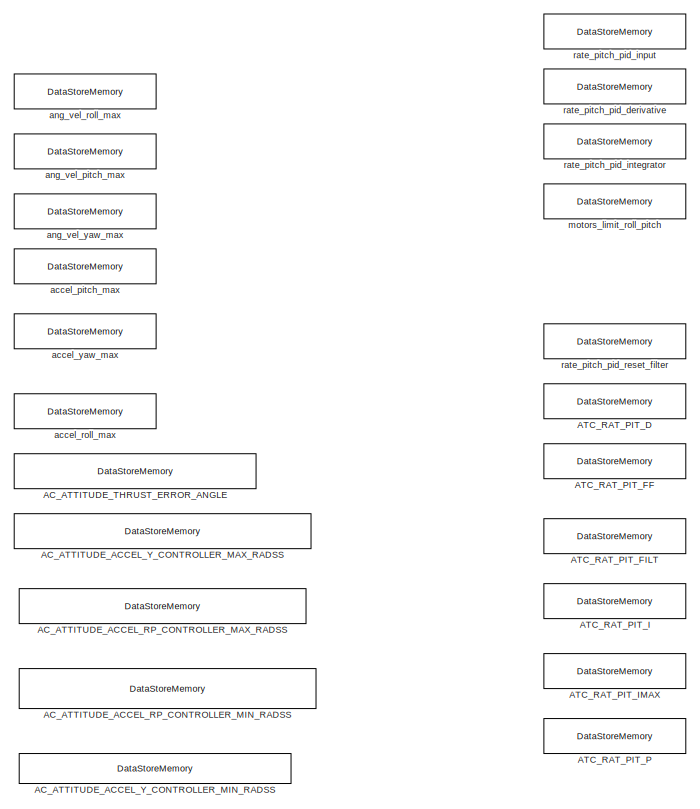
[diagram: root canvas - part 1/3, central region]
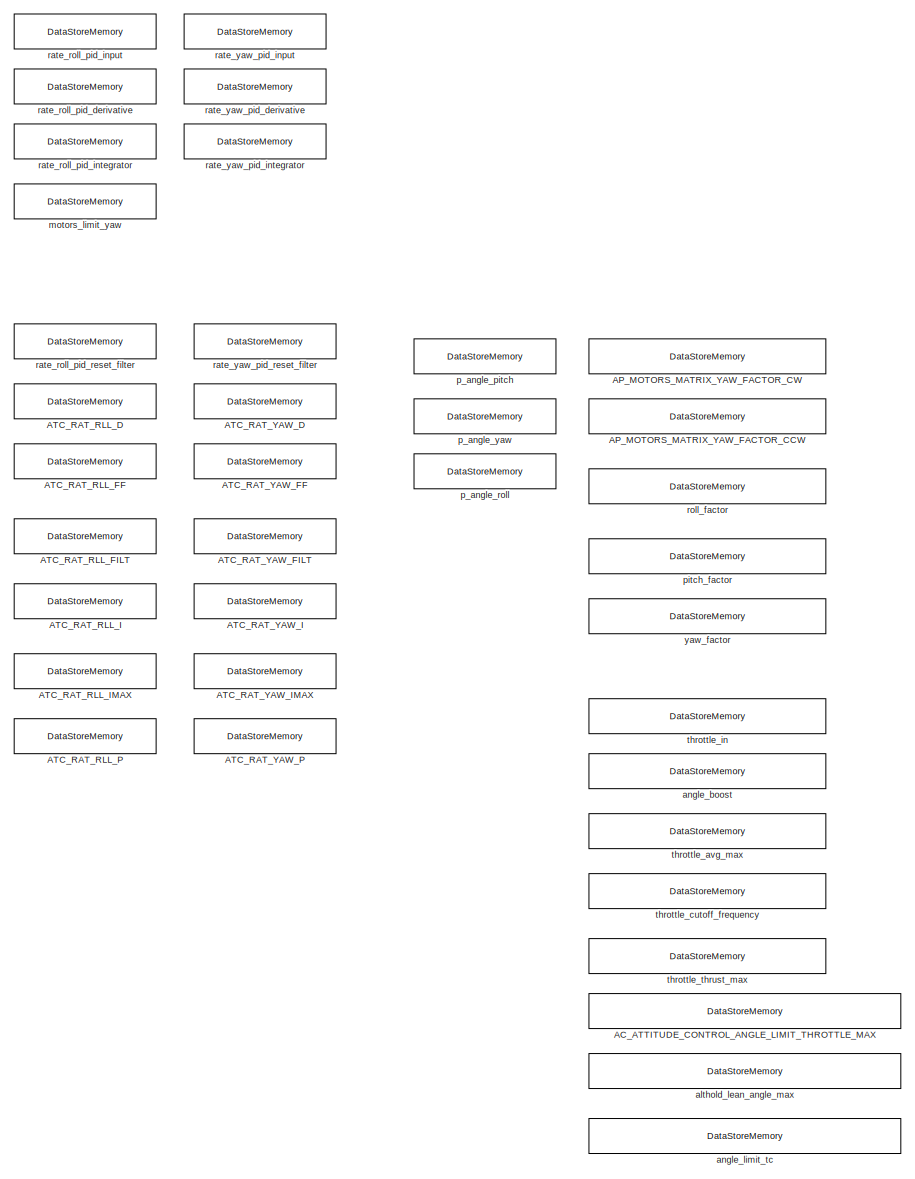
[diagram: root canvas - part 2/3, right side, full height]
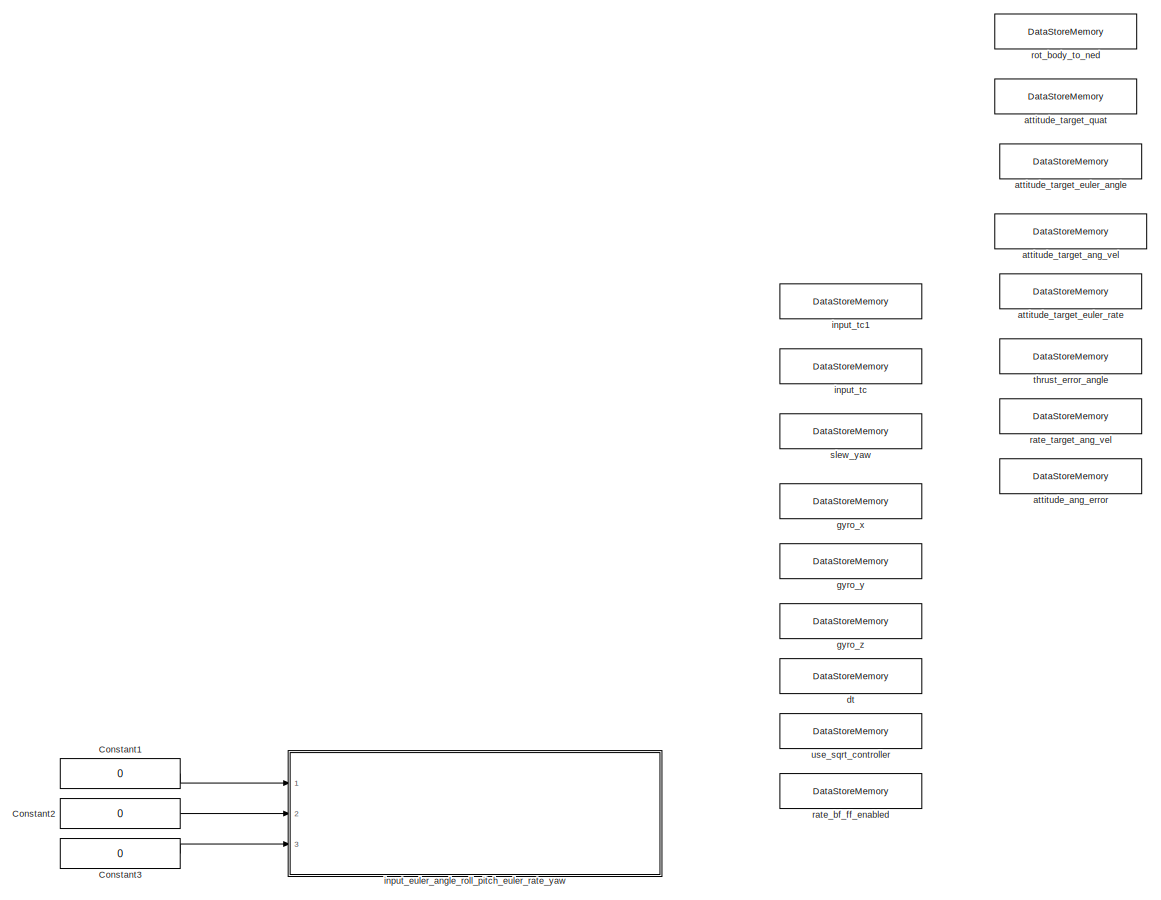
[diagram: root canvas - part 3/3, left side, full height]
MODEL slx_bdc938cd009f
KIND model
CONFIG AbsTol = auto
CONFIG EnableMultiTasking = off
CONFIG FixedStep = 0.01
CONFIG MaxStep = auto
CONFIG MinStep = auto
CONFIG RelTol = 1e-3
CONFIG SampleTimeConstraint = Unconstrained
CONFIG Solver = FixedStepAuto
CONFIG SolverName = FixedStepAuto
CONFIG StartTime = 0.0
CONFIG StopTime = 10.0
BLOCK [DataStoreMemory] AC_ATTITUDE_ACCEL_RP_CONTROLLER_MAX_RADSS
  DataStoreName = AC_ATTITUDE_ACCEL_RP_CONTROLLER_MAX_RADSS
  InitialValue = AC_ATTITUDE_ACCEL_RP_CONTROLLER_MAX_RADSS
  OutDataTypeStr = double
  ReadBeforeWriteMsg = warning
  ShowAdditionalParam = off
  SignalType = real
  VectorParams1D = off
  WriteAfterReadMsg = warning
  WriteAfterWriteMsg = warning
BLOCK [DataStoreMemory] AC_ATTITUDE_ACCEL_RP_CONTROLLER_MIN_RADSS
  DataStoreName = AC_ATTITUDE_ACCEL_RP_CONTROLLER_MIN_RADSS
  InitialValue = AC_ATTITUDE_ACCEL_RP_CONTROLLER_MIN_RADSS
  OutDataTypeStr = double
  ReadBeforeWriteMsg = warning
  ShowAdditionalParam = off
  SignalType = real
  VectorParams1D = off
  WriteAfterReadMsg = warning
  WriteAfterWriteMsg = warning
BLOCK [DataStoreMemory] AC_ATTITUDE_ACCEL_Y_CONTROLLER_MAX_RADSS
  DataStoreName = AC_ATTITUDE_ACCEL_Y_CONTROLLER_MAX_RADSS
  InitialValue = AC_ATTITUDE_ACCEL_Y_CONTROLLER_MAX_RADSS
  OutDataTypeStr = double
  ReadBeforeWriteMsg = warning
  ShowAdditionalParam = off
  SignalType = real
  WriteAfterReadMsg = warning
  WriteAfterWriteMsg = warning
BLOCK [DataStoreMemory] AC_ATTITUDE_ACCEL_Y_CONTROLLER_MIN_RADSS
  DataStoreName = AC_ATTITUDE_ACCEL_Y_CONTROLLER_MIN_RADSS
  InitialValue = AC_ATTITUDE_ACCEL_Y_CONTROLLER_MIN_RADSS
  OutDataTypeStr = double
  ReadBeforeWriteMsg = warning
  ShowAdditionalParam = off
  SignalType = real
  VectorParams1D = off
  WriteAfterReadMsg = warning
  WriteAfterWriteMsg = warning
BLOCK [DataStoreMemory] AC_ATTITUDE_CONTROL_ANGLE_LIMIT_THROTTLE_MAX
  DataStoreName = AC_ATTITUDE_CONTROL_ANGLE_LIMIT_THROTTLE_MAX
  InitialValue = AC_ATTITUDE_CONTROL_ANGLE_LIMIT_THROTTLE_MAX
  OutDataTypeStr = double
  ReadBeforeWriteMsg = warning
  ShowAdditionalParam = off
  SignalType = real
  VectorParams1D = off
  WriteAfterReadMsg = warning
  WriteAfterWriteMsg = warning
BLOCK [DataStoreMemory] AC_ATTITUDE_THRUST_ERROR_ANGLE
  DataStoreName = AC_ATTITUDE_THRUST_ERROR_ANGLE
  InitialValue = AC_ATTITUDE_THRUST_ERROR_ANGLE
  OutDataTypeStr = double
  ReadBeforeWriteMsg = warning
  ShowAdditionalParam = off
  SignalType = real
  WriteAfterReadMsg = warning
  WriteAfterWriteMsg = warning
BLOCK [DataStoreMemory] AP_MOTORS_MATRIX_YAW_FACTOR_CCW
  DataStoreName = AP_MOTORS_MATRIX_YAW_FACTOR_CCW
  InitialValue = AP_MOTORS_MATRIX_YAW_FACTOR_CCW
  OutDataTypeStr = double
  ReadBeforeWriteMsg = warning
  ShowAdditionalParam = off
  SignalType = real
  VectorParams1D = off
  WriteAfterReadMsg = warning
  WriteAfterWriteMsg = warning
BLOCK [DataStoreMemory] AP_MOTORS_MATRIX_YAW_FACTOR_CW
  DataStoreName = AP_MOTORS_MATRIX_YAW_FACTOR_CW
  InitialValue = AP_MOTORS_MATRIX_YAW_FACTOR_CW
  OutDataTypeStr = double
  ReadBeforeWriteMsg = warning
  ShowAdditionalParam = off
  SignalType = real
  VectorParams1D = off
  WriteAfterReadMsg = warning
  WriteAfterWriteMsg = warning
BLOCK [DataStoreMemory] ATC_RAT_PIT_D
  DataStoreName = ATC_RAT_PIT_D
  InitialValue = ATC_RAT_PIT_D
  OutDataTypeStr = double
  ReadBeforeWriteMsg = warning
  ShowAdditionalParam = off
  SignalType = real
  VectorParams1D = off
  WriteAfterReadMsg = warning
  WriteAfterWriteMsg = warning
BLOCK [DataStoreMemory] ATC_RAT_PIT_FF
  DataStoreName = ATC_RAT_PIT_FF
  InitialValue = ATC_RAT_PIT_FF
  OutDataTypeStr = double
  ReadBeforeWriteMsg = warning
  ShowAdditionalParam = off
  SignalType = real
  VectorParams1D = off
  WriteAfterReadMsg = warning
  WriteAfterWriteMsg = warning
BLOCK [DataStoreMemory] ATC_RAT_PIT_FILT
  DataStoreName = ATC_RAT_PIT_FILT
  InitialValue = ATC_RAT_PIT_FILT
  OutDataTypeStr = double
  ReadBeforeWriteMsg = warning
  ShowAdditionalParam = off
  SignalType = real
  VectorParams1D = off
  WriteAfterReadMsg = warning
  WriteAfterWriteMsg = warning
BLOCK [DataStoreMemory] ATC_RAT_PIT_I
  DataStoreName = ATC_RAT_PIT_I
  InitialValue = ATC_RAT_PIT_I
  OutDataTypeStr = double
  ReadBeforeWriteMsg = warning
  ShowAdditionalParam = off
  SignalType = real
  VectorParams1D = off
  WriteAfterReadMsg = warning
  WriteAfterWriteMsg = warning
BLOCK [DataStoreMemory] ATC_RAT_PIT_IMAX
  DataStoreName = ATC_RAT_PIT_IMAX
  InitialValue = ATC_RAT_PIT_IMAX
  OutDataTypeStr = double
  ReadBeforeWriteMsg = warning
  ShowAdditionalParam = off
  SignalType = real
  VectorParams1D = off
  WriteAfterReadMsg = warning
  WriteAfterWriteMsg = warning
BLOCK [DataStoreMemory] ATC_RAT_PIT_P
  DataStoreName = ATC_RAT_PIT_P
  InitialValue = ATC_RAT_PIT_P
  OutDataTypeStr = double
  ReadBeforeWriteMsg = warning
  ShowAdditionalParam = off
  SignalType = real
  VectorParams1D = off
  WriteAfterReadMsg = warning
  WriteAfterWriteMsg = warning
BLOCK [DataStoreMemory] ATC_RAT_RLL_D
  DataStoreName = ATC_RAT_RLL_D
  InitialValue = ATC_RAT_RLL_D
  OutDataTypeStr = double
  ReadBeforeWriteMsg = warning
  ShowAdditionalParam = off
  SignalType = real
  VectorParams1D = off
  WriteAfterReadMsg = warning
  WriteAfterWriteMsg = warning
BLOCK [DataStoreMemory] ATC_RAT_RLL_FF
  DataStoreName = ATC_RAT_RLL_FF
  InitialValue = ATC_RAT_RLL_FF
  OutDataTypeStr = double
  ReadBeforeWriteMsg = warning
  ShowAdditionalParam = off
  SignalType = real
  VectorParams1D = off
  WriteAfterReadMsg = warning
  WriteAfterWriteMsg = warning
BLOCK [DataStoreMemory] ATC_RAT_RLL_FILT
  DataStoreName = ATC_RAT_RLL_FILT
  InitialValue = ATC_RAT_RLL_FILT
  OutDataTypeStr = double
  ReadBeforeWriteMsg = warning
  ShowAdditionalParam = off
  SignalType = real
  VectorParams1D = off
  WriteAfterReadMsg = warning
  WriteAfterWriteMsg = warning
BLOCK [DataStoreMemory] ATC_RAT_RLL_I
  DataStoreName = ATC_RAT_RLL_I
  InitialValue = ATC_RAT_RLL_I
  OutDataTypeStr = double
  ReadBeforeWriteMsg = warning
  ShowAdditionalParam = off
  SignalType = real
  VectorParams1D = off
  WriteAfterReadMsg = warning
  WriteAfterWriteMsg = warning
BLOCK [DataStoreMemory] ATC_RAT_RLL_IMAX
  DataStoreName = ATC_RAT_RLL_IMAX
  InitialValue = ATC_RAT_RLL_IMAX
  OutDataTypeStr = double
  ReadBeforeWriteMsg = warning
  ShowAdditionalParam = off
  SignalType = real
  VectorParams1D = off
  WriteAfterReadMsg = warning
  WriteAfterWriteMsg = warning
BLOCK [DataStoreMemory] ATC_RAT_RLL_P
  DataStoreName = ATC_RAT_RLL_P
  InitialValue = ATC_RAT_RLL_P
  OutDataTypeStr = double
  ReadBeforeWriteMsg = warning
  ShowAdditionalParam = off
  SignalType = real
  VectorParams1D = off
  WriteAfterReadMsg = warning
  WriteAfterWriteMsg = warning
BLOCK [DataStoreMemory] ATC_RAT_YAW_D
  DataStoreName = ATC_RAT_YAW_D
  InitialValue = ATC_RAT_YAW_D
  OutDataTypeStr = double
  ReadBeforeWriteMsg = warning
  ShowAdditionalParam = off
  SignalType = real
  VectorParams1D = off
  WriteAfterReadMsg = warning
  WriteAfterWriteMsg = warning
BLOCK [DataStoreMemory] ATC_RAT_YAW_FF
  DataStoreName = ATC_RAT_YAW_FF
  InitialValue = ATC_RAT_YAW_FF
  OutDataTypeStr = double
  ReadBeforeWriteMsg = warning
  ShowAdditionalParam = off
  SignalType = real
  VectorParams1D = off
  WriteAfterReadMsg = warning
  WriteAfterWriteMsg = warning
BLOCK [DataStoreMemory] ATC_RAT_YAW_FILT
  DataStoreName = ATC_RAT_YAW_FILT
  InitialValue = ATC_RAT_YAW_FILT
  OutDataTypeStr = double
  ReadBeforeWriteMsg = warning
  ShowAdditionalParam = off
  SignalType = real
  VectorParams1D = off
  WriteAfterReadMsg = warning
  WriteAfterWriteMsg = warning
BLOCK [DataStoreMemory] ATC_RAT_YAW_I
  DataStoreName = ATC_RAT_YAW_I
  InitialValue = ATC_RAT_YAW_I
  OutDataTypeStr = double
  ReadBeforeWriteMsg = warning
  ShowAdditionalParam = off
  SignalType = real
  VectorParams1D = off
  WriteAfterReadMsg = warning
  WriteAfterWriteMsg = warning
BLOCK [DataStoreMemory] ATC_RAT_YAW_IMAX
  DataStoreName = ATC_RAT_YAW_IMAX
  InitialValue = ATC_RAT_YAW_IMAX
  OutDataTypeStr = double
  ReadBeforeWriteMsg = warning
  ShowAdditionalParam = off
  SignalType = real
  VectorParams1D = off
  WriteAfterReadMsg = warning
  WriteAfterWriteMsg = warning
BLOCK [DataStoreMemory] ATC_RAT_YAW_P
  DataStoreName = ATC_RAT_YAW_P
  InitialValue = ATC_RAT_YAW_P
  OutDataTypeStr = double
  ReadBeforeWriteMsg = warning
  ShowAdditionalParam = off
  SignalType = real
  VectorParams1D = off
  WriteAfterReadMsg = warning
  WriteAfterWriteMsg = warning
BLOCK [Constant] Constant1
  Value = 0
  VectorParams1D = off
BLOCK [Constant] Constant2
  Value = 0
  VectorParams1D = off
BLOCK [Constant] Constant3
  Value = 0
  VectorParams1D = off
BLOCK [DataStoreMemory] accel_pitch_max
  DataStoreName = accel_pitch_max
  InitialValue = accel_pitch_max
  OutDataTypeStr = double
  ReadBeforeWriteMsg = warning
  ShowAdditionalParam = off
  SignalType = real
  VectorParams1D = off
  WriteAfterReadMsg = warning
  WriteAfterWriteMsg = warning
BLOCK [DataStoreMemory] accel_roll_max
  DataStoreName = accel_roll_max
  InitialValue = accel_roll_max
  OutDataTypeStr = double
  ReadBeforeWriteMsg = warning
  ShowAdditionalParam = off
  SignalType = real
  VectorParams1D = off
  WriteAfterReadMsg = warning
  WriteAfterWriteMsg = warning
BLOCK [DataStoreMemory] accel_yaw_max
  DataStoreName = accel_yaw_max
  InitialValue = accel_yaw_max
  OutDataTypeStr = double
  ReadBeforeWriteMsg = warning
  ShowAdditionalParam = off
  SignalType = real
  VectorParams1D = off
  WriteAfterReadMsg = warning
  WriteAfterWriteMsg = warning
BLOCK [DataStoreMemory] althold_lean_angle_max
  DataStoreName = althold_lean_angle_max
  InitialValue = althold_lean_angle_max
  OutDataTypeStr = double
  ReadBeforeWriteMsg = warning
  ShowAdditionalParam = off
  SignalType = real
  VectorParams1D = off
  WriteAfterReadMsg = warning
  WriteAfterWriteMsg = warning
BLOCK [DataStoreMemory] ang_vel_pitch_max
  DataStoreName = ang_vel_pitch_max
  InitialValue = ang_vel_pitch_max
  OutDataTypeStr = double
  ReadBeforeWriteMsg = warning
  ShowAdditionalParam = off
  SignalType = real
  WriteAfterReadMsg = warning
  WriteAfterWriteMsg = warning
BLOCK [DataStoreMemory] ang_vel_roll_max
  DataStoreName = ang_vel_roll_max
  InitialValue = ang_vel_roll_max
  OutDataTypeStr = double
  ReadBeforeWriteMsg = warning
  ShowAdditionalParam = off
  SignalType = real
  WriteAfterReadMsg = warning
  WriteAfterWriteMsg = warning
BLOCK [DataStoreMemory] ang_vel_yaw_max
  DataStoreName = ang_vel_yaw_max
  InitialValue = ang_vel_yaw_max
  OutDataTypeStr = double
  ReadBeforeWriteMsg = warning
  ShowAdditionalParam = off
  SignalType = real
  WriteAfterReadMsg = warning
  WriteAfterWriteMsg = warning
BLOCK [DataStoreMemory] angle_boost
  DataStoreName = angle_boost
  InitialValue = angle_boost
  OutDataTypeStr = double
  ReadBeforeWriteMsg = warning
  ShowAdditionalParam = off
  SignalType = real
  VectorParams1D = off
  WriteAfterReadMsg = warning
  WriteAfterWriteMsg = warning
BLOCK [DataStoreMemory] angle_limit_tc
  DataStoreName = angle_limit_tc
  InitialValue = angle_limit_tc
  OutDataTypeStr = double
  ReadBeforeWriteMsg = warning
  ShowAdditionalParam = off
  SignalType = real
  VectorParams1D = off
  WriteAfterReadMsg = warning
  WriteAfterWriteMsg = warning
BLOCK [DataStoreMemory] attitude_ang_error
  DataStoreName = attitude_ang_error
  InitialValue = attitude_ang_error
  OutDataTypeStr = double
  ReadBeforeWriteMsg = warning
  ShowAdditionalParam = off
  SignalType = real
  VectorParams1D = off
  WriteAfterReadMsg = warning
  WriteAfterWriteMsg = warning
BLOCK [DataStoreMemory] attitude_target_ang_vel
  DataStoreName = attitude_target_ang_vel
  InitialValue = attitude_target_ang_vel
  OutDataTypeStr = double
  ReadBeforeWriteMsg = warning
  ShowAdditionalParam = off
  SignalType = real
  VectorParams1D = off
  WriteAfterReadMsg = warning
  WriteAfterWriteMsg = warning
BLOCK [DataStoreMemory] attitude_target_euler_angle
  DataStoreName = attitude_target_euler_angle
  InitialValue = attitude_target_euler_angle
  OutDataTypeStr = double
  ReadBeforeWriteMsg = warning
  ShowAdditionalParam = off
  SignalType = real
  VectorParams1D = off
  WriteAfterReadMsg = warning
  WriteAfterWriteMsg = warning
BLOCK [DataStoreMemory] attitude_target_euler_rate
  DataStoreName = attitude_target_euler_rate
  InitialValue = attitude_target_euler_rate
  OutDataTypeStr = double
  ReadBeforeWriteMsg = warning
  ShowAdditionalParam = off
  SignalType = real
  VectorParams1D = off
  WriteAfterReadMsg = warning
  WriteAfterWriteMsg = warning
BLOCK [DataStoreMemory] attitude_target_quat
  DataStoreName = attitude_target_quat
  InitialValue = attitude_target_quat
  OutDataTypeStr = double
  ReadBeforeWriteMsg = warning
  ShowAdditionalParam = off
  SignalType = real
  VectorParams1D = off
  WriteAfterReadMsg = warning
  WriteAfterWriteMsg = warning
BLOCK [DataStoreMemory] dt
  DataStoreName = dt
  InitialValue = dt
  OutDataTypeStr = double
  ReadBeforeWriteMsg = warning
  ShowAdditionalParam = off
  SignalType = real
  WriteAfterReadMsg = warning
  WriteAfterWriteMsg = warning
BLOCK [DataStoreMemory] gyro_x
  DataStoreName = gyro_x
  InitialValue = gyro_x
  OutDataTypeStr = double
  ReadBeforeWriteMsg = warning
  ShowAdditionalParam = off
  SignalType = real
  WriteAfterReadMsg = warning
  WriteAfterWriteMsg = warning
BLOCK [DataStoreMemory] gyro_y
  DataStoreName = gyro_y
  InitialValue = gyro_y
  OutDataTypeStr = double
  ReadBeforeWriteMsg = warning
  ShowAdditionalParam = off
  SignalType = real
  WriteAfterReadMsg = warning
  WriteAfterWriteMsg = warning
BLOCK [DataStoreMemory] gyro_z
  DataStoreName = gyro_z
  InitialValue = gyro_z
  OutDataTypeStr = double
  ReadBeforeWriteMsg = warning
  ShowAdditionalParam = off
  SignalType = real
  WriteAfterReadMsg = warning
  WriteAfterWriteMsg = warning
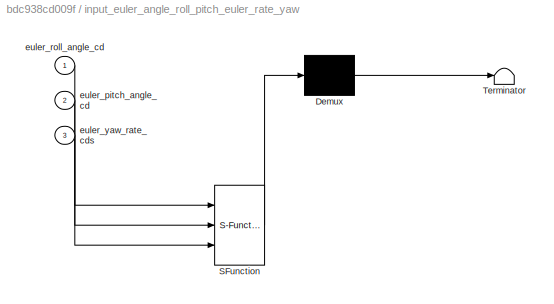
BLOCK [SubSystem] input_euler_angle_roll_pitch_euler_rate_yaw
  ErrorFcn = Stateflow.Translate.translate
  PermitHierarchicalResolution = ExplicitOnly
  Ports = [3]
  RequestExecContextInheritance = off
  SFBlockType = MATLAB Function
  TreatAsAtomicUnit = on
BLOCK [Demux] input_euler_angle_roll_pitch_euler_rate_yaw/ Demux 
  Outputs = 1
  Ports = [1, 1]
BLOCK [S-Function] input_euler_angle_roll_pitch_euler_rate_yaw/ SFunction 
  EnableBusSupport = on
  FunctionName = sf_sfun
  PortCounts = [3 1]
  Ports = [3, 1]
  SFcnIsStateOwnerBlock = off
  SFunctionDeploymentMode = off
  Tag = Stateflow S-Function AC_AttitudeControl_sim1 3
BLOCK [Terminator] input_euler_angle_roll_pitch_euler_rate_yaw/ Terminator 
BLOCK [Inport] input_euler_angle_roll_pitch_euler_rate_yaw/euler_pitch_angle_cd
  IconDisplay = Port number
  Port = 2
BLOCK [Inport] input_euler_angle_roll_pitch_euler_rate_yaw/euler_roll_angle_cd
  IconDisplay = Port number
BLOCK [Inport] input_euler_angle_roll_pitch_euler_rate_yaw/euler_yaw_rate_cds
  IconDisplay = Port number
  Port = 3
BLOCK [DataStoreMemory] input_tc
  DataStoreName = input_tc
  InitialValue = input_tc
  OutDataTypeStr = double
  ReadBeforeWriteMsg = warning
  ShowAdditionalParam = off
  SignalType = real
  VectorParams1D = off
  WriteAfterReadMsg = warning
  WriteAfterWriteMsg = warning
BLOCK [DataStoreMemory] input_tc1
  DataStoreName = inint
  InitialValue = inint
  OutDataTypeStr = double
  ReadBeforeWriteMsg = warning
  ShowAdditionalParam = off
  SignalType = real
  VectorParams1D = off
  WriteAfterReadMsg = warning
  WriteAfterWriteMsg = warning
BLOCK [DataStoreMemory] motors_limit_roll_pitch
  DataStoreName = motors_limit_roll_pitch
  InitialValue = motors_limit_roll_pitch
  OutDataTypeStr = double
  ReadBeforeWriteMsg = warning
  ShowAdditionalParam = off
  SignalType = real
  VectorParams1D = off
  WriteAfterReadMsg = warning
  WriteAfterWriteMsg = warning
BLOCK [DataStoreMemory] motors_limit_yaw
  DataStoreName = motors_limit_yaw
  InitialValue = motors_limit_yaw
  OutDataTypeStr = double
  ReadBeforeWriteMsg = warning
  ShowAdditionalParam = off
  SignalType = real
  VectorParams1D = off
  WriteAfterReadMsg = warning
  WriteAfterWriteMsg = warning
BLOCK [DataStoreMemory] p_angle_pitch
  DataStoreName = p_angle_pitch
  InitialValue = p_angle_pitch
  OutDataTypeStr = double
  ReadBeforeWriteMsg = warning
  ShowAdditionalParam = off
  SignalType = real
  VectorParams1D = off
  WriteAfterReadMsg = warning
  WriteAfterWriteMsg = warning
BLOCK [DataStoreMemory] p_angle_roll
  DataStoreName = p_angle_roll
  InitialValue = p_angle_roll
  OutDataTypeStr = double
  ReadBeforeWriteMsg = warning
  ShowAdditionalParam = off
  SignalType = real
  WriteAfterReadMsg = warning
  WriteAfterWriteMsg = warning
BLOCK [DataStoreMemory] p_angle_yaw
  DataStoreName = p_angle_yaw
  InitialValue = p_angle_yaw
  OutDataTypeStr = double
  ReadBeforeWriteMsg = warning
  ShowAdditionalParam = off
  SignalType = real
  WriteAfterReadMsg = warning
  WriteAfterWriteMsg = warning
BLOCK [DataStoreMemory] pitch_factor
  DataStoreName = pitch_factor
  InitialValue = pitch_factor
  OutDataTypeStr = double
  ReadBeforeWriteMsg = warning
  ShowAdditionalParam = off
  SignalType = real
  VectorParams1D = off
  WriteAfterReadMsg = warning
  WriteAfterWriteMsg = warning
BLOCK [DataStoreMemory] rate_bf_ff_enabled
  DataStoreName = rate_bf_ff_enabled
  InitialValue = rate_bf_ff_enabled
  OutDataTypeStr = double
  ReadBeforeWriteMsg = warning
  ShowAdditionalParam = off
  SignalType = real
  WriteAfterReadMsg = warning
  WriteAfterWriteMsg = warning
BLOCK [DataStoreMemory] rate_pitch_pid_derivative
  DataStoreName = rate_pitch_pid_derivative
  InitialValue = rate_pitch_pid_derivative
  OutDataTypeStr = double
  ReadBeforeWriteMsg = warning
  ShowAdditionalParam = off
  SignalType = real
  VectorParams1D = off
  WriteAfterReadMsg = warning
  WriteAfterWriteMsg = warning
BLOCK [DataStoreMemory] rate_pitch_pid_input
  DataStoreName = rate_pitch_pid_input
  InitialValue = rate_pitch_pid_input
  OutDataTypeStr = double
  ReadBeforeWriteMsg = warning
  ShowAdditionalParam = off
  SignalType = real
  VectorParams1D = off
  WriteAfterReadMsg = warning
  WriteAfterWriteMsg = warning
BLOCK [DataStoreMemory] rate_pitch_pid_integrator
  DataStoreName = rate_pitch_pid_integrator
  InitialValue = rate_pitch_pid_integrator
  OutDataTypeStr = double
  ReadBeforeWriteMsg = warning
  ShowAdditionalParam = off
  SignalType = real
  VectorParams1D = off
  WriteAfterReadMsg = warning
  WriteAfterWriteMsg = warning
BLOCK [DataStoreMemory] rate_pitch_pid_reset_filter
  DataStoreName = rate_pitch_pid_reset_filter
  InitialValue = rate_pitch_pid_reset_filter
  OutDataTypeStr = double
  ReadBeforeWriteMsg = warning
  ShowAdditionalParam = off
  SignalType = real
  VectorParams1D = off
  WriteAfterReadMsg = warning
  WriteAfterWriteMsg = warning
BLOCK [DataStoreMemory] rate_roll_pid_derivative
  DataStoreName = rate_roll_pid_derivative
  InitialValue = rate_roll_pid_derivative
  OutDataTypeStr = double
  ReadBeforeWriteMsg = warning
  ShowAdditionalParam = off
  SignalType = real
  VectorParams1D = off
  WriteAfterReadMsg = warning
  WriteAfterWriteMsg = warning
BLOCK [DataStoreMemory] rate_roll_pid_input
  DataStoreName = rate_roll_pid_input
  InitialValue = rate_roll_pid_input
  OutDataTypeStr = double
  ReadBeforeWriteMsg = warning
  ShowAdditionalParam = off
  SignalType = real
  VectorParams1D = off
  WriteAfterReadMsg = warning
  WriteAfterWriteMsg = warning
BLOCK [DataStoreMemory] rate_roll_pid_integrator
  DataStoreName = rate_roll_pid_integrator
  InitialValue = rate_roll_pid_integrator
  OutDataTypeStr = double
  ReadBeforeWriteMsg = warning
  ShowAdditionalParam = off
  SignalType = real
  VectorParams1D = off
  WriteAfterReadMsg = warning
  WriteAfterWriteMsg = warning
BLOCK [DataStoreMemory] rate_roll_pid_reset_filter
  DataStoreName = rate_roll_pid_reset_filter
  InitialValue = rate_roll_pid_reset_filter
  OutDataTypeStr = double
  ReadBeforeWriteMsg = warning
  ShowAdditionalParam = off
  SignalType = real
  VectorParams1D = off
  WriteAfterReadMsg = warning
  WriteAfterWriteMsg = warning
BLOCK [DataStoreMemory] rate_target_ang_vel
  DataStoreName = rate_target_ang_vel
  InitialValue = rate_target_ang_vel
  OutDataTypeStr = double
  ReadBeforeWriteMsg = warning
  ShowAdditionalParam = off
  SignalType = real
  VectorParams1D = off
  WriteAfterReadMsg = warning
  WriteAfterWriteMsg = warning
BLOCK [DataStoreMemory] rate_yaw_pid_derivative
  DataStoreName = rate_yaw_pid_derivative
  InitialValue = rate_yaw_pid_derivative
  OutDataTypeStr = double
  ReadBeforeWriteMsg = warning
  ShowAdditionalParam = off
  SignalType = real
  VectorParams1D = off
  WriteAfterReadMsg = warning
  WriteAfterWriteMsg = warning
BLOCK [DataStoreMemory] rate_yaw_pid_input
  DataStoreName = rate_yaw_pid_input
  InitialValue = rate_yaw_pid_input
  OutDataTypeStr = double
  ReadBeforeWriteMsg = warning
  ShowAdditionalParam = off
  SignalType = real
  VectorParams1D = off
  WriteAfterReadMsg = warning
  WriteAfterWriteMsg = warning
BLOCK [DataStoreMemory] rate_yaw_pid_integrator
  DataStoreName = rate_yaw_pid_integrator
  InitialValue = rate_roll_pid_integrator
  OutDataTypeStr = double
  ReadBeforeWriteMsg = warning
  ShowAdditionalParam = off
  SignalType = real
  VectorParams1D = off
  WriteAfterReadMsg = warning
  WriteAfterWriteMsg = warning
BLOCK [DataStoreMemory] rate_yaw_pid_reset_filter
  DataStoreName = rate_yaw_pid_reset_filter
  InitialValue = rate_yaw_pid_reset_filter
  OutDataTypeStr = double
  ReadBeforeWriteMsg = warning
  ShowAdditionalParam = off
  SignalType = real
  VectorParams1D = off
  WriteAfterReadMsg = warning
  WriteAfterWriteMsg = warning
BLOCK [DataStoreMemory] roll_factor
  DataStoreName = roll_factor
  InitialValue = roll_factor
  OutDataTypeStr = double
  ReadBeforeWriteMsg = warning
  ShowAdditionalParam = off
  SignalType = real
  VectorParams1D = off
  WriteAfterReadMsg = warning
  WriteAfterWriteMsg = warning
BLOCK [DataStoreMemory] rot_body_to_ned
  DataStoreName = rot_body_to_ned
  InitialValue = rot_body_to_ned
  OutDataTypeStr = double
  ReadBeforeWriteMsg = warning
  ShowAdditionalParam = off
  SignalType = real
  VectorParams1D = off
  WriteAfterReadMsg = warning
  WriteAfterWriteMsg = warning
BLOCK [DataStoreMemory] slew_yaw
  DataStoreName = slew_yaw
  InitialValue = slew_yaw
  OutDataTypeStr = double
  ReadBeforeWriteMsg = warning
  ShowAdditionalParam = off
  SignalType = real
  VectorParams1D = off
  WriteAfterReadMsg = warning
  WriteAfterWriteMsg = warning
BLOCK [DataStoreMemory] throttle_avg_max
  DataStoreName = throttle_avg_max
  InitialValue = throttle_avg_max
  OutDataTypeStr = double
  ReadBeforeWriteMsg = warning
  ShowAdditionalParam = off
  SignalType = real
  VectorParams1D = off
  WriteAfterReadMsg = warning
  WriteAfterWriteMsg = warning
BLOCK [DataStoreMemory] throttle_cutoff_frequency
  DataStoreName = throttle_cutoff_frequency
  InitialValue = throttle_cutoff_frequency
  OutDataTypeStr = double
  ReadBeforeWriteMsg = warning
  ShowAdditionalParam = off
  SignalType = real
  VectorParams1D = off
  WriteAfterReadMsg = warning
  WriteAfterWriteMsg = warning
BLOCK [DataStoreMemory] throttle_in
  DataStoreName = throttle_in
  InitialValue = throttle_in
  OutDataTypeStr = double
  ReadBeforeWriteMsg = warning
  ShowAdditionalParam = off
  SignalType = real
  VectorParams1D = off
  WriteAfterReadMsg = warning
  WriteAfterWriteMsg = warning
BLOCK [DataStoreMemory] throttle_thrust_max
  DataStoreName = throttle_thrust_max
  InitialValue = throttle_thrust_max
  OutDataTypeStr = double
  ReadBeforeWriteMsg = warning
  ShowAdditionalParam = off
  SignalType = real
  VectorParams1D = off
  WriteAfterReadMsg = warning
  WriteAfterWriteMsg = warning
BLOCK [DataStoreMemory] thrust_error_angle
  DataStoreName = thrust_error_angle
  InitialValue = thrust_error_angle
  OutDataTypeStr = double
  ReadBeforeWriteMsg = warning
  ShowAdditionalParam = off
  SignalType = real
  VectorParams1D = off
  WriteAfterReadMsg = warning
  WriteAfterWriteMsg = warning
BLOCK [DataStoreMemory] use_sqrt_controller
  DataStoreName = use_sqrt_controller
  InitialValue = use_sqrt_controller
  OutDataTypeStr = double
  ReadBeforeWriteMsg = warning
  ShowAdditionalParam = off
  SignalType = real
  WriteAfterReadMsg = warning
  WriteAfterWriteMsg = warning
BLOCK [DataStoreMemory] yaw_factor
  DataStoreName = yaw_factor
  InitialValue = yaw_factor
  OutDataTypeStr = double
  ReadBeforeWriteMsg = warning
  ShowAdditionalParam = off
  SignalType = real
  VectorParams1D = off
  WriteAfterReadMsg = warning
  WriteAfterWriteMsg = warning
LINE Constant1:1 -> input_euler_angle_roll_pitch_euler_rate_yaw:1
LINE Constant2:1 -> input_euler_angle_roll_pitch_euler_rate_yaw:2
LINE Constant3:1 -> input_euler_angle_roll_pitch_euler_rate_yaw:3
CHART input_euler_angle_roll_pitch_euler_rate_yaw states=1 transitions=1
  STATE_LABEL 'eML_blk_kernel()'
  STATE_LABEL 'SCRIPT:\nfunction input_euler_angle_roll_pitch_euler_rate_yaw(  euler_roll_angle_cd,   euler_pitch_angle_cd,   euler_yaw_rate_cds)\n% a1=attitude_desired_quat;\nglobal attitude_target_ang_vel\nglobal gyro_x\nglobal gyro_y\nglobal gyro_z\n% global \nglobal inint\nif(inint)\nsetup_motors() ;\ninint=0;\nend\ninput_euler_angle_roll_pitch_euler_rate_yaw(  euler_roll_angle_cd,   euler_pitch_angle_cd,   euler_yaw_rat...<+267ch>'
